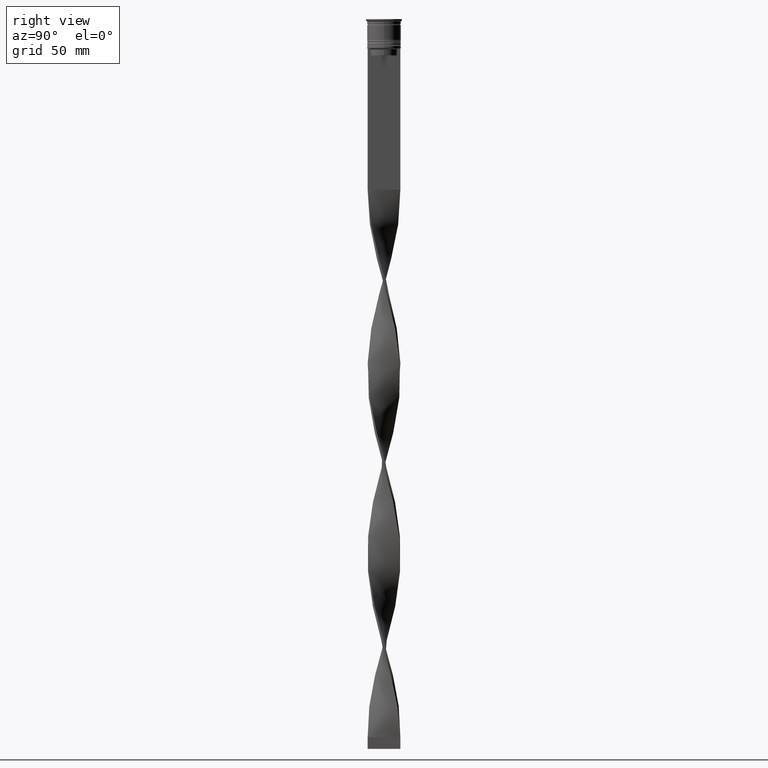
[diagram: clean part render]
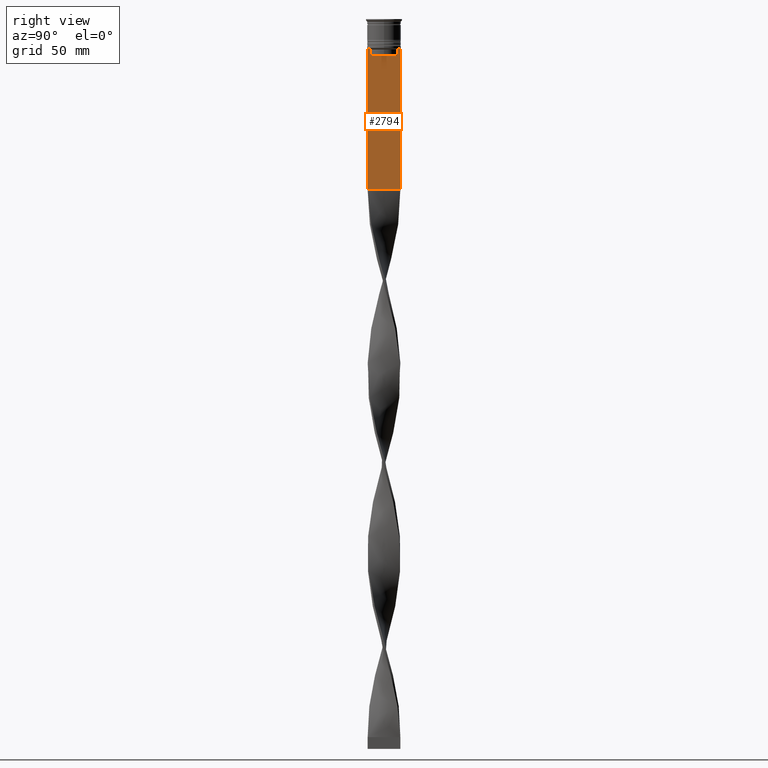
[diagram: same view with one face highlighted and labeled with its STEP entity id]
A machine part, right view. The second image highlights one B-rep face of the part: STEP entity #2794.
In plain terms, the highlighted planar face has unit normal (-1, 0, 0).
Its self-contained STEP definition (entity closure, byte-faithful):
#9 = CARTESIAN_POINT ( 'NONE',  ( 0.5000000000000000000, -6.999999999999997335, 1.535668847618198329 ) ) ;
#16 = CARTESIAN_POINT ( 'NONE',  ( 0.5000000000000000000, -6.999999999999997335, -12.50000000000000000 ) ) ;
#53 = FACE_OUTER_BOUND ( 'NONE', #384, .T. ) ;
#81 = DIRECTION ( 'NONE',  ( -0.000000000000000000, -0.000000000000000000, 1.000000000000000000 ) ) ;
#89 = VECTOR ( 'NONE', #399, 1000.000000000000000 ) ;
#125 = CARTESIAN_POINT ( 'NONE',  ( 0.5000000000000000000, -6.999999999999997335, 1.535668847618198329 ) ) ;
#157 = VERTEX_POINT ( 'NONE', #3684 ) ;
#177 = EDGE_CURVE ( 'NONE', #3347, #2164, #2915, .T. ) ;
#210 = CARTESIAN_POINT ( 'NONE',  ( 0.5000000000000000000, 5.795128834036803234, -12.83336016107156574 ) ) ;
#213 = VECTOR ( 'NONE', #938, 1000.000000000000000 ) ;
#215 = VECTOR ( 'NONE', #541, 1000.000000000000000 ) ;
#234 = VECTOR ( 'NONE', #808, 1000.000000000000000 ) ;
#251 = CARTESIAN_POINT ( 'NONE',  ( 0.5000000000000000000, -5.627832620112292794, -15.50000000000000000 ) ) ;
#270 = CARTESIAN_POINT ( 'NONE',  ( 0.5000000000000000000, -5.627832620112292794, -13.00000000000000000 ) ) ;
#301 = VECTOR ( 'NONE', #1626, 1000.000000000000000 ) ;
#357 = CARTESIAN_POINT ( 'NONE',  ( 0.5000000000000000000, 7.000000000000002665, 1.535668847618198329 ) ) ;
#362 = VECTOR ( 'NONE', #588, 1000.000000000000000 ) ;
#384 = EDGE_LOOP ( 'NONE', ( #616, #2820, #396, #2020, #833, #2943, #3370, #1556, #2494, #2886 ) ) ;
#396 = ORIENTED_EDGE ( 'NONE', *, *, #3101, .T. ) ;
#399 = DIRECTION ( 'NONE',  ( 0.000000000000000000, -1.000000000000000000, 0.000000000000000000 ) ) ;
#420 = EDGE_CURVE ( 'NONE', #4023, #3347, #2801, .T. ) ;
#472 = EDGE_CURVE ( 'NONE', #2843, #2644, #1086, .T. ) ;
#541 = DIRECTION ( 'NONE',  ( 0.000000000000000000, 1.000000000000000000, 0.000000000000000000 ) ) ;
#588 = DIRECTION ( 'NONE',  ( 0.000000000000000000, 0.000000000000000000, -1.000000000000000000 ) ) ;
#616 = ORIENTED_EDGE ( 'NONE', *, *, #420, .T. ) ;
#617 = VECTOR ( 'NONE', #81, 1000.000000000000000 ) ;
#631 = CARTESIAN_POINT ( 'NONE',  ( 0.5000000000000000000, -6.129641098791995368, -12.50000000000000000 ) ) ;
#717 = EDGE_CURVE ( 'NONE', #2644, #2146, #2793, .T. ) ;
#741 = EDGE_CURVE ( 'NONE', #2146, #1235, #3653, .T. ) ;
#808 = DIRECTION ( 'NONE',  ( 0.000000000000000000, 0.000000000000000000, -1.000000000000000000 ) ) ;
#833 = ORIENTED_EDGE ( 'NONE', *, *, #2992, .T. ) ;
#887 = CARTESIAN_POINT ( 'NONE',  ( 0.5000000000000000000, -5.962396079681185235, -12.66669137279835589 ) ) ;
#928 = DIRECTION ( 'NONE',  ( 0.000000000000000000, 0.000000000000000000, -1.000000000000000000 ) ) ;
#938 = DIRECTION ( 'NONE',  ( 0.000000000000000000, -1.000000000000000000, 0.000000000000000000 ) ) ;
#974 = LINE ( 'NONE', #1866, #617 ) ;
#1063 = CARTESIAN_POINT ( 'NONE',  ( 0.5000000000000000000, -6.999999999999997335, -12.50000000000000000 ) ) ;
#1086 = LINE ( 'NONE', #1063, #89 ) ;
#1126 = VECTOR ( 'NONE', #928, 1000.000000000000000 ) ;
#1219 = B_SPLINE_CURVE_WITH_KNOTS ( 'NONE', 3,
 ( #3702, #2749, #887, #631 ),
 .UNSPECIFIED., .F., .F.,
 ( 4, 4 ),
 ( 0.02651134470867368836, 0.02721991123504332449 ),
 .UNSPECIFIED. ) ;
#1230 = DIRECTION ( 'NONE',  ( 0.000000000000000000, 0.000000000000000000, 1.000000000000000000 ) ) ;
#1235 = VERTEX_POINT ( 'NONE', #2806 ) ;
#1263 = CARTESIAN_POINT ( 'NONE',  ( 0.5000000000000000000, 5.627832620112292794, -13.00000000000000000 ) ) ;
#1362 = CARTESIAN_POINT ( 'NONE',  ( 0.5000000000000000000, 5.649999999999998579, -15.50000000000000000 ) ) ;
#1556 = ORIENTED_EDGE ( 'NONE', *, *, #717, .T. ) ;
#1626 = DIRECTION ( 'NONE',  ( 0.000000000000000000, -1.000000000000000000, 0.000000000000000000 ) ) ;
#1809 = EDGE_CURVE ( 'NONE', #4023, #1235, #3124, .T. ) ;
#1866 = CARTESIAN_POINT ( 'NONE',  ( 0.5000000000000000000, -5.627832620112292794, 0.000000000000000000 ) ) ;
#1949 = CARTESIAN_POINT ( 'NONE',  ( 0.5000000000000000000, 7.000000000000002665, -12.50000000000000000 ) ) ;
#2020 = ORIENTED_EDGE ( 'NONE', *, *, #3725, .T. ) ;
#2146 = VERTEX_POINT ( 'NONE', #2899 ) ;
#2164 = VERTEX_POINT ( 'NONE', #1263 ) ;
#2201 = CARTESIAN_POINT ( 'NONE',  ( 0.5000000000000000000, 6.129641098791995368, -12.50000000000000000 ) ) ;
#2321 = LINE ( 'NONE', #1362, #301 ) ;
#2357 = LINE ( 'NONE', #3937, #234 ) ;
#2365 = CARTESIAN_POINT ( 'NONE',  ( 0.5000000000000000000, 5.627832620112292794, -13.00000000000000000 ) ) ;
#2494 = ORIENTED_EDGE ( 'NONE', *, *, #741, .T. ) ;
#2507 = PLANE ( 'NONE',  #3284 ) ;
#2644 = VERTEX_POINT ( 'NONE', #3012 ) ;
#2674 = CARTESIAN_POINT ( 'NONE',  ( 0.5000000000000000000, 5.962396146966409738, -12.66669130573587054 ) ) ;
#2749 = CARTESIAN_POINT ( 'NONE',  ( 0.5000000000000000000, -5.795128760752289665, -12.83336023406855197 ) ) ;
#2793 = LINE ( 'NONE', #9, #1126 ) ;
#2794 = ADVANCED_FACE ( 'NONE', ( #53 ), #2507, .F. ) ;
#2801 = LINE ( 'NONE', #16, #213 ) ;
#2806 = CARTESIAN_POINT ( 'NONE',  ( 0.5000000000000000000, 7.000000000000002665, -73.00000000000001421 ) ) ;
#2820 = ORIENTED_EDGE ( 'NONE', *, *, #177, .T. ) ;
#2843 = VERTEX_POINT ( 'NONE', #3930 ) ;
#2886 = ORIENTED_EDGE ( 'NONE', *, *, #1809, .F. ) ;
#2899 = CARTESIAN_POINT ( 'NONE',  ( 0.5000000000000000000, -6.999999999999997335, -73.00000000000001421 ) ) ;
#2915 = B_SPLINE_CURVE_WITH_KNOTS ( 'NONE', 3,
 ( #3030, #2674, #210, #2365 ),
 .UNSPECIFIED., .F., .F.,
 ( 4, 4 ),
 ( 0.01045365750109871796, 0.01116204421161398619 ),
 .UNSPECIFIED. ) ;
#2943 = ORIENTED_EDGE ( 'NONE', *, *, #3261, .T. ) ;
#2992 = EDGE_CURVE ( 'NONE', #3250, #3341, #974, .T. ) ;
#3012 = CARTESIAN_POINT ( 'NONE',  ( 0.5000000000000000000, -6.999999999999997335, -12.50000000000000000 ) ) ;
#3030 = CARTESIAN_POINT ( 'NONE',  ( 0.5000000000000000000, 6.129641098791995368, -12.50000000000000000 ) ) ;
#3101 = EDGE_CURVE ( 'NONE', #2164, #157, #2357, .T. ) ;
#3124 = LINE ( 'NONE', #357, #362 ) ;
#3250 = VERTEX_POINT ( 'NONE', #251 ) ;
#3261 = EDGE_CURVE ( 'NONE', #3341, #2843, #1219, .T. ) ;
#3284 = AXIS2_PLACEMENT_3D ( 'NONE', #125, #3722, #1230 ) ;
#3341 = VERTEX_POINT ( 'NONE', #270 ) ;
#3347 = VERTEX_POINT ( 'NONE', #2201 ) ;
#3370 = ORIENTED_EDGE ( 'NONE', *, *, #472, .T. ) ;
#3653 = LINE ( 'NONE', #3697, #215 ) ;
#3684 = CARTESIAN_POINT ( 'NONE',  ( 0.5000000000000000000, 5.627832620112292794, -15.50000000000000000 ) ) ;
#3697 = CARTESIAN_POINT ( 'NONE',  ( 0.5000000000000000000, -6.999999999999997335, -73.00000000000001421 ) ) ;
#3702 = CARTESIAN_POINT ( 'NONE',  ( 0.5000000000000000000, -5.627832620112292794, -13.00000000000000000 ) ) ;
#3722 = DIRECTION ( 'NONE',  ( -1.000000000000000000, 0.000000000000000000, 0.000000000000000000 ) ) ;
#3725 = EDGE_CURVE ( 'NONE', #157, #3250, #2321, .T. ) ;
#3930 = CARTESIAN_POINT ( 'NONE',  ( 0.5000000000000000000, -6.129641098791995368, -12.50000000000000000 ) ) ;
#3937 = CARTESIAN_POINT ( 'NONE',  ( 0.5000000000000000000, 5.627832620112292794, 0.000000000000000000 ) ) ;
#4023 = VERTEX_POINT ( 'NONE', #1949 ) ;